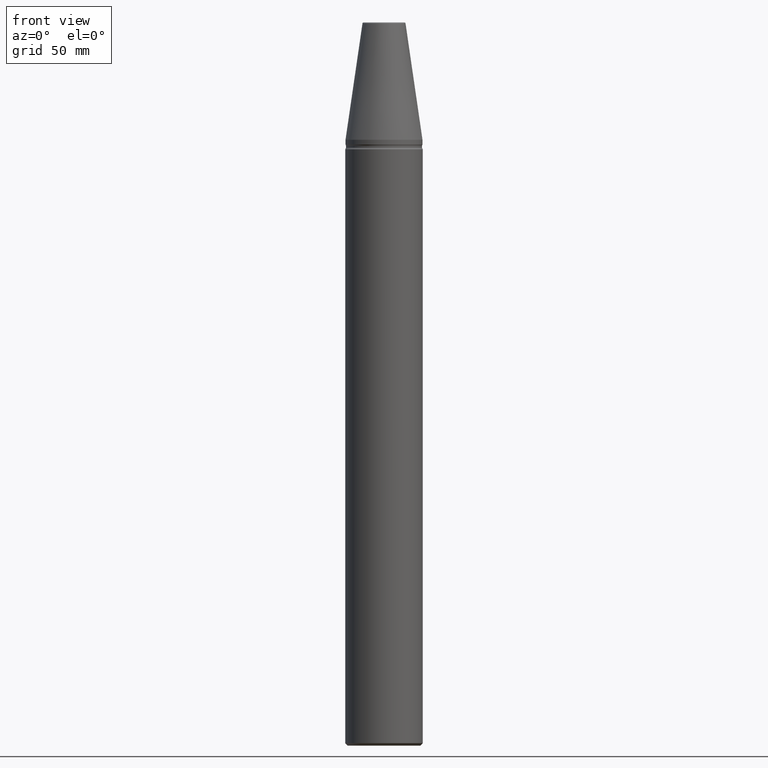
[diagram: clean part render]
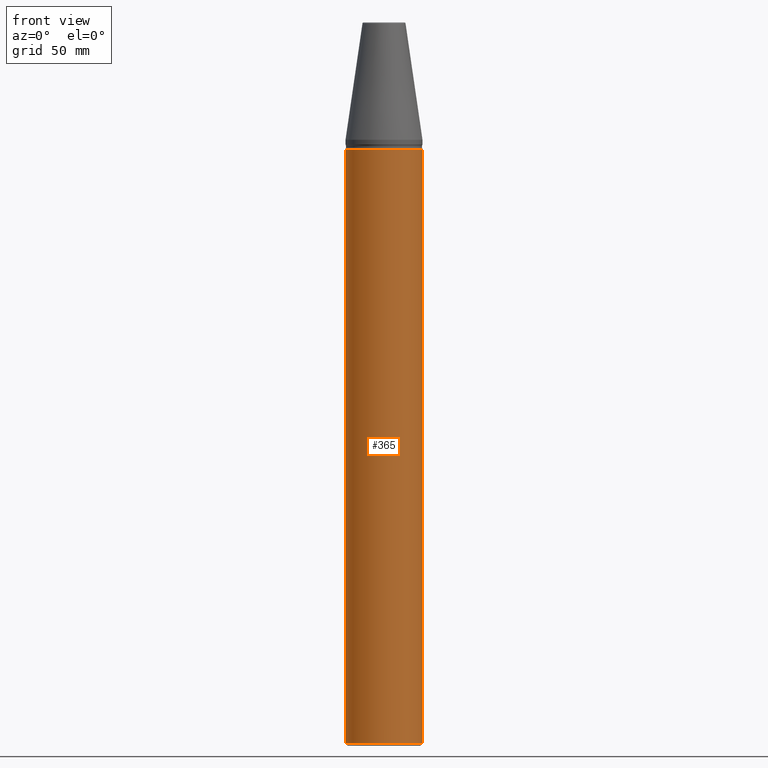
[diagram: same view with one face highlighted and labeled with its STEP entity id]
A machine part, front view. The second image highlights one B-rep face of the part: STEP entity #365.
In plain terms, the highlighted cylindrical surface (partial cylindrical patch) has radius 16 mm, axis along (-0, -0, 1).
Its self-contained STEP definition (entity closure, byte-faithful):
#7 = CARTESIAN_POINT ( 'NONE',  ( 0.0000000000000000000, 0.0000000000000000000, -249.0000000000001100 ) ) ;
#11 = CARTESIAN_POINT ( 'NONE',  ( -15.99999999999979200, 1.959434878635739500E-015, 101.9861575583861400 ) ) ;
#45 = DIRECTION ( 'NONE',  ( -0.0000000000000000000, -0.0000000000000000000, 1.000000000000000000 ) ) ;
#47 = CARTESIAN_POINT ( 'NONE',  ( 15.99999999999979200, 0.0000000000000000000, -249.0000000000001100 ) ) ;
#53 = CARTESIAN_POINT ( 'NONE',  ( -15.99999999999979200, 1.959434878635739500E-015, -249.0000000000001100 ) ) ;
#77 = CYLINDRICAL_SURFACE ( 'NONE', #523, 15.99999999999979200 ) ;
#108 = DIRECTION ( 'NONE',  ( 1.000000000000000000, 0.0000000000000000000, 0.0000000000000000000 ) ) ;
#112 = CARTESIAN_POINT ( 'NONE',  ( 15.99999999999979200, 0.0000000000000000000, -4.000000000000447600 ) ) ;
#126 = VERTEX_POINT ( 'NONE', #112 ) ;
#151 = VECTOR ( 'NONE', #45, 1000.000000000000000 ) ;
#156 = AXIS2_PLACEMENT_3D ( 'NONE', #7, #375, #340 ) ;
#176 = VECTOR ( 'NONE', #192, 1000.000000000000000 ) ;
#192 = DIRECTION ( 'NONE',  ( -0.0000000000000000000, -0.0000000000000000000, 1.000000000000000000 ) ) ;
#199 = EDGE_CURVE ( 'NONE', #398, #410, #216, .T. ) ;
#216 = CIRCLE ( 'NONE', #156, 15.99999999999979200 ) ;
#221 = DIRECTION ( 'NONE',  ( -0.0000000000000000000, -0.0000000000000000000, 1.000000000000000000 ) ) ;
#241 = CARTESIAN_POINT ( 'NONE',  ( 15.99999999999979200, 0.0000000000000000000, 101.9861575583861400 ) ) ;
#256 = LINE ( 'NONE', #241, #151 ) ;
#259 = EDGE_CURVE ( 'NONE', #287, #126, #373, .T. ) ;
#266 = EDGE_CURVE ( 'NONE', #398, #287, #385, .T. ) ;
#287 = VERTEX_POINT ( 'NONE', #439 ) ;
#289 = CARTESIAN_POINT ( 'NONE',  ( 0.0000000000000000000, 0.0000000000000000000, 101.9861575583861400 ) ) ;
#320 = DIRECTION ( 'NONE',  ( -0.0000000000000000000, -0.0000000000000000000, 1.000000000000000000 ) ) ;
#327 = EDGE_CURVE ( 'NONE', #410, #126, #256, .T. ) ;
#340 = DIRECTION ( 'NONE',  ( 1.000000000000000000, 0.0000000000000000000, 0.0000000000000000000 ) ) ;
#346 = ORIENTED_EDGE ( 'NONE', *, *, #266, .F. ) ;
#352 = ORIENTED_EDGE ( 'NONE', *, *, #259, .F. ) ;
#355 = DIRECTION ( 'NONE',  ( 1.000000000000000000, 0.0000000000000000000, 0.0000000000000000000 ) ) ;
#365 = ADVANCED_FACE ( 'NONE', ( #448 ), #77, .T. ) ;
#373 = CIRCLE ( 'NONE', #397, 15.99999999999979200 ) ;
#375 = DIRECTION ( 'NONE',  ( -0.0000000000000000000, -0.0000000000000000000, 1.000000000000000000 ) ) ;
#385 = LINE ( 'NONE', #11, #176 ) ;
#397 = AXIS2_PLACEMENT_3D ( 'NONE', #488, #221, #355 ) ;
#398 = VERTEX_POINT ( 'NONE', #53 ) ;
#410 = VERTEX_POINT ( 'NONE', #47 ) ;
#428 = ORIENTED_EDGE ( 'NONE', *, *, #199, .T. ) ;
#439 = CARTESIAN_POINT ( 'NONE',  ( -15.99999999999979200, 1.959434878635739500E-015, -4.000000000000447600 ) ) ;
#448 = FACE_OUTER_BOUND ( 'NONE', #471, .T. ) ;
#471 = EDGE_LOOP ( 'NONE', ( #346, #428, #497, #352 ) ) ;
#488 = CARTESIAN_POINT ( 'NONE',  ( 0.0000000000000000000, 0.0000000000000000000, -4.000000000000447600 ) ) ;
#497 = ORIENTED_EDGE ( 'NONE', *, *, #327, .T. ) ;
#523 = AXIS2_PLACEMENT_3D ( 'NONE', #289, #320, #108 ) ;